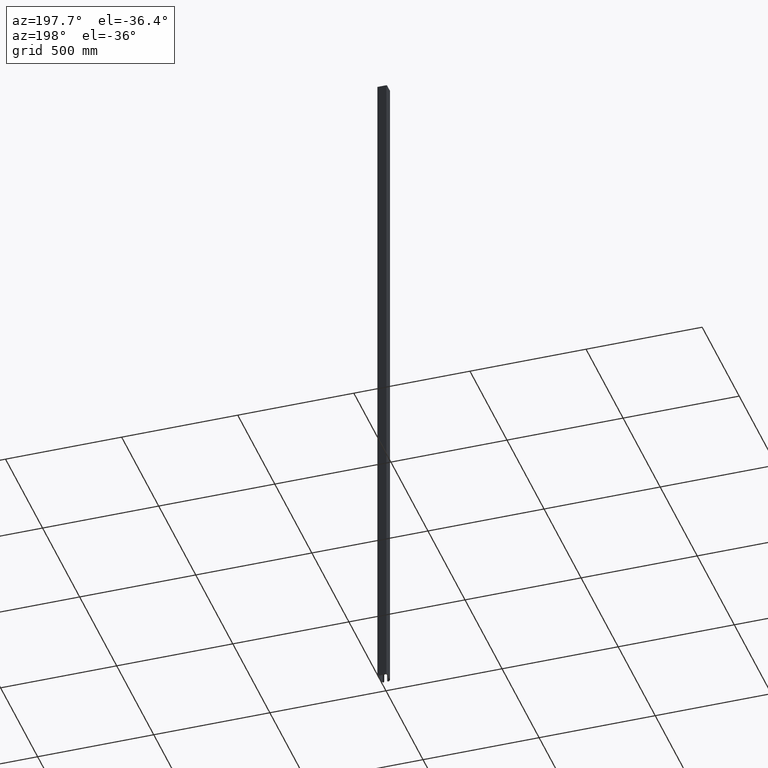
[diagram: clean part render]
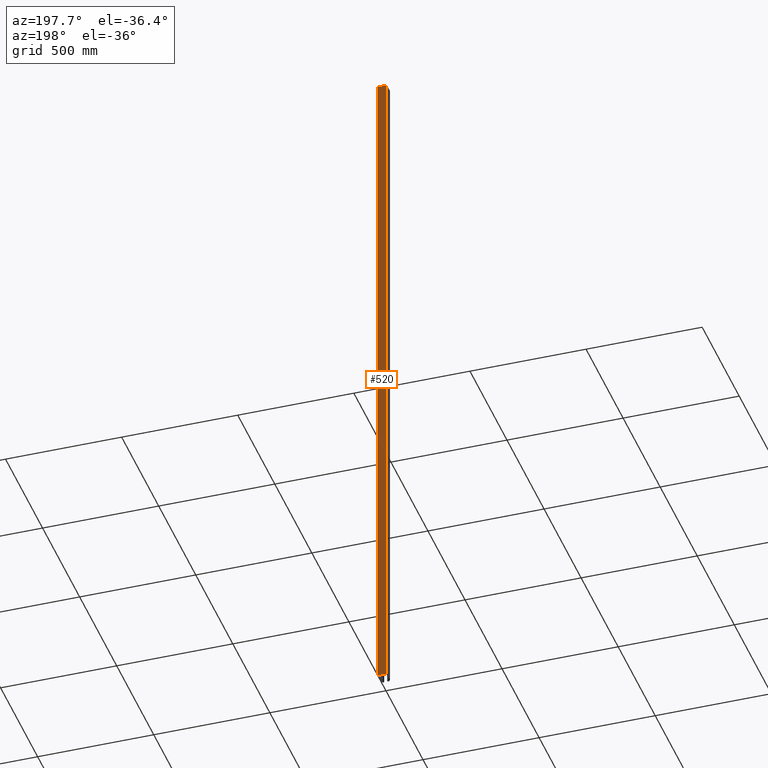
[diagram: same view with one face highlighted and labeled with its STEP entity id]
A machine part, auxiliary view. The second image highlights one B-rep face of the part: STEP entity #520.
In plain terms, the highlighted planar face has unit normal (-0, -1, 0).
Its self-contained STEP definition (entity closure, byte-faithful):
#100 = VECTOR ( 'NONE', #11211, 1000.000000000000000 ) ;
#370 = VERTEX_POINT ( 'NONE', #9080 ) ;
#520 = ADVANCED_FACE ( 'NONE', ( #13105 ), #2792, .F. ) ;
#797 = EDGE_CURVE ( 'NONE', #370, #9692, #1715, .T. ) ;
#1715 = LINE ( 'NONE', #2944, #11423 ) ;
#1898 = DIRECTION ( 'NONE',  ( -0.000000000000000000, -0.000000000000000000, -1.000000000000000000 ) ) ;
#1970 = CARTESIAN_POINT ( 'NONE',  ( -17.99999999999999645, 52.99999999999999289, 1500.000000000000000 ) ) ;
#2044 = ORIENTED_EDGE ( 'NONE', *, *, #11310, .F. ) ;
#2114 = DIRECTION ( 'NONE',  ( -1.000000000000000000, 3.854941057726239083E-16, -0.000000000000000000 ) ) ;
#2684 = LINE ( 'NONE', #12399, #100 ) ;
#2792 = PLANE ( 'NONE',  #6036 ) ;
#2944 = CARTESIAN_POINT ( 'NONE',  ( 17.99999999999999645, 52.99999999999999289, 1500.000000000000000 ) ) ;
#3054 = DIRECTION ( 'NONE',  ( -0.000000000000000000, -0.000000000000000000, -1.000000000000000000 ) ) ;
#4238 = CARTESIAN_POINT ( 'NONE',  ( 17.99999999999999645, 52.99999999999999289, -1500.000000000000000 ) ) ;
#5417 = ORIENTED_EDGE ( 'NONE', *, *, #797, .T. ) ;
#6036 = AXIS2_PLACEMENT_3D ( 'NONE', #11547, #7168, #7120 ) ;
#6115 = VECTOR ( 'NONE', #3054, 1000.000000000000000 ) ;
#6571 = ORIENTED_EDGE ( 'NONE', *, *, #9446, .F. ) ;
#7120 = DIRECTION ( 'NONE',  ( 1.000000000000000000, -3.854941057726239083E-16, 0.000000000000000000 ) ) ;
#7168 = DIRECTION ( 'NONE',  ( -3.854941057726239083E-16, -1.000000000000000000, 0.000000000000000000 ) ) ;
#7626 = LINE ( 'NONE', #1970, #6115 ) ;
#8045 = EDGE_LOOP ( 'NONE', ( #12279, #6571, #2044, #5417 ) ) ;
#9080 = CARTESIAN_POINT ( 'NONE',  ( 17.99999999999999645, 52.99999999999999289, 1500.000000000000000 ) ) ;
#9446 = EDGE_CURVE ( 'NONE', #10064, #11473, #7626, .T. ) ;
#9599 = EDGE_CURVE ( 'NONE', #9692, #11473, #9854, .T. ) ;
#9692 = VERTEX_POINT ( 'NONE', #4238 ) ;
#9854 = LINE ( 'NONE', #12767, #11708 ) ;
#10064 = VERTEX_POINT ( 'NONE', #11059 ) ;
#11059 = CARTESIAN_POINT ( 'NONE',  ( -17.99999999999999645, 52.99999999999999289, 1500.000000000000000 ) ) ;
#11211 = DIRECTION ( 'NONE',  ( -1.000000000000000000, 3.854941057726239083E-16, -0.000000000000000000 ) ) ;
#11310 = EDGE_CURVE ( 'NONE', #370, #10064, #2684, .T. ) ;
#11423 = VECTOR ( 'NONE', #1898, 1000.000000000000000 ) ;
#11473 = VERTEX_POINT ( 'NONE', #11631 ) ;
#11547 = CARTESIAN_POINT ( 'NONE',  ( 0.000000000000000000, 53.00000000000000000, 1500.000000000000000 ) ) ;
#11631 = CARTESIAN_POINT ( 'NONE',  ( -17.99999999999999645, 52.99999999999999289, -1500.000000000000000 ) ) ;
#11708 = VECTOR ( 'NONE', #2114, 1000.000000000000000 ) ;
#12279 = ORIENTED_EDGE ( 'NONE', *, *, #9599, .T. ) ;
#12399 = CARTESIAN_POINT ( 'NONE',  ( 0.000000000000000000, 53.00000000000000000, 1500.000000000000000 ) ) ;
#12767 = CARTESIAN_POINT ( 'NONE',  ( 0.000000000000000000, 53.00000000000000000, -1500.000000000000000 ) ) ;
#13105 = FACE_OUTER_BOUND ( 'NONE', #8045, .T. ) ;